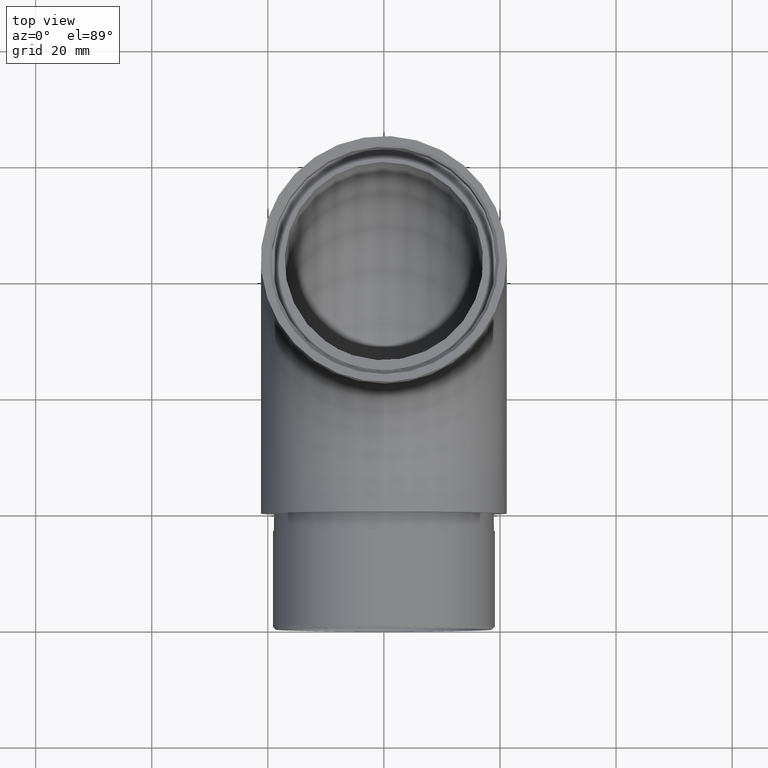
[diagram: clean part render]
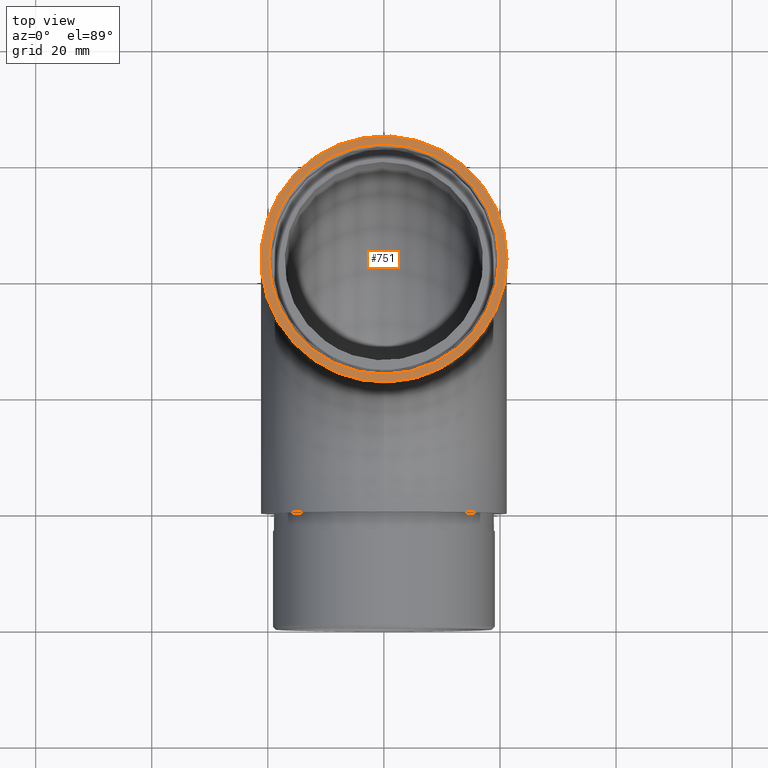
[diagram: same view with one face highlighted and labeled with its STEP entity id]
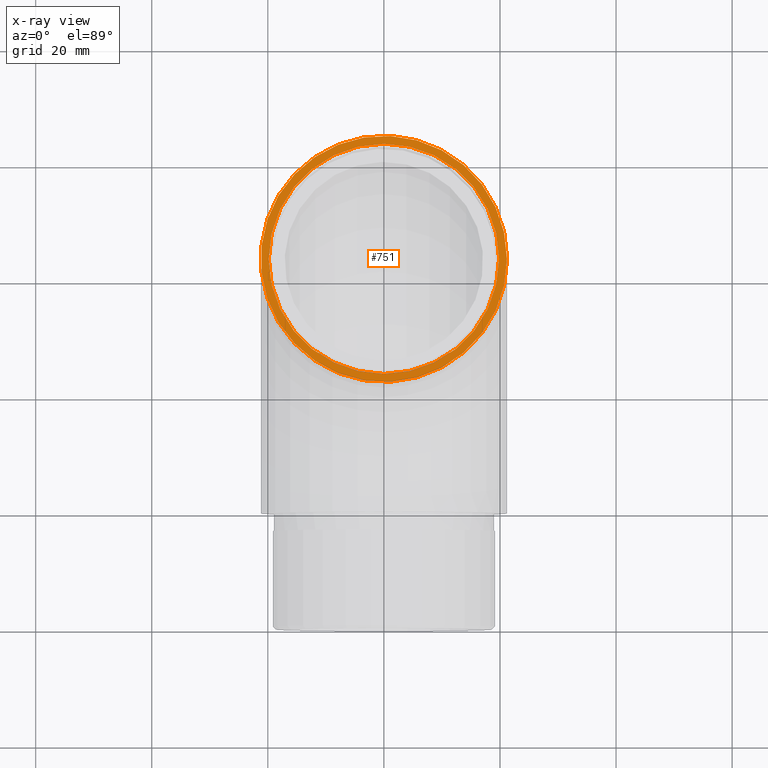
[diagram: x-ray of the same camera — body ghosted, the highlighted face saturated]
A machine part, top view. The second image highlights one B-rep face of the part: STEP entity #751.
The next image is the same camera in x-ray: the body ghosted, the highlighted face saturated — about 0% of this face is hidden behind the body in this view.
In plain terms, the highlighted planar face has unit normal (0, 0, 1).
Its self-contained STEP definition (entity closure, byte-faithful):
#93 = FACE_BOUND ( 'NONE', #4669, .T. ) ;
#404 = AXIS2_PLACEMENT_3D ( 'NONE', #10755, #6979, #1114 ) ;
#490 = CIRCLE ( 'NONE', #11139, 19.85000000000007200 ) ;
#646 = DIRECTION ( 'NONE',  ( 1.000000000000000000, 0.0000000000000000000, -0.0000000000000000000 ) ) ;
#751 = ADVANCED_FACE ( 'NONE', ( #93, #5918 ), #11749, .T. ) ;
#1114 = DIRECTION ( 'NONE',  ( 1.000000000000000000, 0.0000000000000000000, 0.0000000000000000000 ) ) ;
#1868 = CARTESIAN_POINT ( 'NONE',  ( 19.85000000000007200, 42.79999999999998300, 62.79999999999999700 ) ) ;
#3592 = CARTESIAN_POINT ( 'NONE',  ( 0.0000000000000000000, 42.79999999999998300, 62.79999999999999700 ) ) ;
#4669 = EDGE_LOOP ( 'NONE', ( #5424 ) ) ;
#5424 = ORIENTED_EDGE ( 'NONE', *, *, #12051, .T. ) ;
#5918 = FACE_OUTER_BOUND ( 'NONE', #11833, .T. ) ;
#6534 = DIRECTION ( 'NONE',  ( 0.0000000000000000000, 0.0000000000000000000, 1.000000000000000000 ) ) ;
#6979 = DIRECTION ( 'NONE',  ( 0.0000000000000000000, 0.0000000000000000000, 1.000000000000000000 ) ) ;
#7172 = DIRECTION ( 'NONE',  ( 1.000000000000000000, 0.0000000000000000000, 0.0000000000000000000 ) ) ;
#8166 = ORIENTED_EDGE ( 'NONE', *, *, #9967, .T. ) ;
#9157 = CARTESIAN_POINT ( 'NONE',  ( 0.0000000000000000000, 42.79999999999998300, 62.79999999999999700 ) ) ;
#9797 = CARTESIAN_POINT ( 'NONE',  ( 21.20000000000000300, 42.79999999999998300, 62.79999999999999700 ) ) ;
#9967 = EDGE_CURVE ( 'NONE', #11870, #11870, #11605, .T. ) ;
#10168 = DIRECTION ( 'NONE',  ( -0.0000000000000000000, -0.0000000000000000000, -1.000000000000000000 ) ) ;
#10646 = VERTEX_POINT ( 'NONE', #1868 ) ;
#10755 = CARTESIAN_POINT ( 'NONE',  ( 0.0000000000000000000, 42.79999999999998300, 62.79999999999999700 ) ) ;
#11139 = AXIS2_PLACEMENT_3D ( 'NONE', #9157, #10168, #7172 ) ;
#11498 = AXIS2_PLACEMENT_3D ( 'NONE', #3592, #6534, #646 ) ;
#11605 = CIRCLE ( 'NONE', #404, 21.20000000000000300 ) ;
#11749 = PLANE ( 'NONE',  #11498 ) ;
#11833 = EDGE_LOOP ( 'NONE', ( #8166 ) ) ;
#11870 = VERTEX_POINT ( 'NONE', #9797 ) ;
#12051 = EDGE_CURVE ( 'NONE', #10646, #10646, #490, .T. ) ;